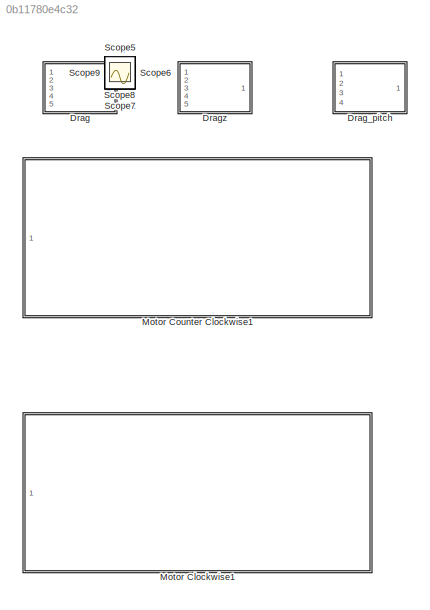
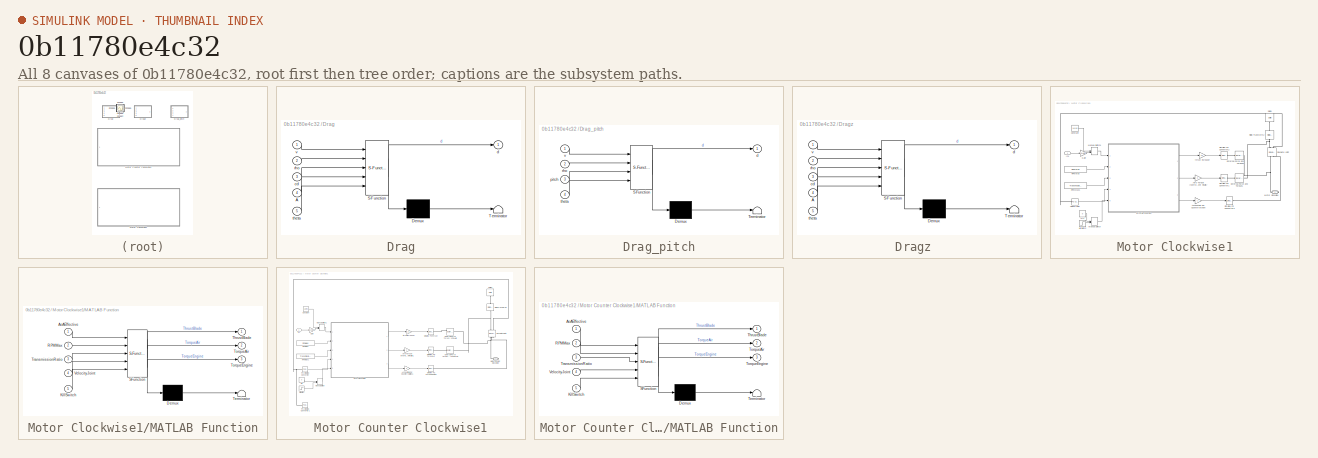
[diagram: thumbnail index - all 8 canvases of the model, root first then tree order]
MODEL slx_0b11780e4c32
KIND library
CONFIG AbsTol = auto
CONFIG FixedStep = auto
CONFIG MaxStep = auto
CONFIG MinStep = auto
CONFIG RelTol = 1e-3
CONFIG SampleTimeConstraint = Unconstrained
CONFIG Solver = VariableStepAuto
CONFIG SolverMode = Auto
CONFIG SolverName = VariableStepAuto
CONFIG StartTime = 0.0
CONFIG StopTime = 10.0
BLOCK [SubSystem] Drag
  ErrorFcn = Stateflow.Translate.translate
  MinAlgLoopOccurrences = on
  PermitHierarchicalResolution = ExplicitOnly
  Ports = [5, 1]
  RTWSystemCode = Inline
  RequestExecContextInheritance = off
  SFBlockType = MATLAB Function
  SystemSampleTime = 1
  TreatAsAtomicUnit = on
  Variant = off
BLOCK [Demux] Drag/ Demux 
  Outputs = 1
  Ports = [1, 1]
BLOCK [S-Function] Drag/ SFunction 
  EnableBusSupport = off
  FunctionName = sf_sfun
  PortCounts = [5 2]
  Ports = [5, 2]
  SFunctionDeploymentMode = off
  Tag = Stateflow S-Function Library_Octocopter 17
BLOCK [Terminator] Drag/ Terminator 
BLOCK [Inport] Drag/A
  IconDisplay = Port number
  Port = 4
BLOCK [Inport] Drag/cd
  IconDisplay = Port number
  Port = 3
BLOCK [Outport] Drag/d
  IconDisplay = Port number
BLOCK [Inport] Drag/rho
  IconDisplay = Port number
  Port = 2
BLOCK [Inport] Drag/theta
  IconDisplay = Port number
  Port = 5
BLOCK [Inport] Drag/v
  IconDisplay = Port number
BLOCK [SubSystem] Drag_pitch
  ErrorFcn = Stateflow.Translate.translate
  MinAlgLoopOccurrences = on
  PermitHierarchicalResolution = ExplicitOnly
  Ports = [4, 1]
  RTWSystemCode = Inline
  RequestExecContextInheritance = off
  SFBlockType = MATLAB Function
  SystemSampleTime = 1
  TreatAsAtomicUnit = on
  Variant = off
BLOCK [Demux] Drag_pitch/ Demux 
  Outputs = 1
  Ports = [1, 1]
BLOCK [S-Function] Drag_pitch/ SFunction 
  EnableBusSupport = off
  FunctionName = sf_sfun
  PortCounts = [4 2]
  Ports = [4, 2]
  SFunctionDeploymentMode = off
  Tag = Stateflow S-Function Library_Octocopter 3
BLOCK [Terminator] Drag_pitch/ Terminator 
BLOCK [Outport] Drag_pitch/d
  IconDisplay = Port number
BLOCK [Inport] Drag_pitch/pitch
  IconDisplay = Port number
  Port = 3
BLOCK [Inport] Drag_pitch/rho
  IconDisplay = Port number
  Port = 2
BLOCK [Inport] Drag_pitch/theta
  IconDisplay = Port number
  Port = 4
BLOCK [Inport] Drag_pitch/v
  IconDisplay = Port number
BLOCK [SubSystem] Dragz 
  ErrorFcn = Stateflow.Translate.translate
  MinAlgLoopOccurrences = on
  PermitHierarchicalResolution = ExplicitOnly
  Ports = [5, 1]
  RTWSystemCode = Inline
  RequestExecContextInheritance = off
  SFBlockType = MATLAB Function
  SystemSampleTime = 1
  TreatAsAtomicUnit = on
  Variant = off
BLOCK [Demux] Dragz / Demux 
  Outputs = 1
  Ports = [1, 1]
BLOCK [S-Function] Dragz / SFunction 
  EnableBusSupport = off
  FunctionName = sf_sfun
  PortCounts = [5 2]
  Ports = [5, 2]
  SFunctionDeploymentMode = off
  Tag = Stateflow S-Function Library_Octocopter 4
BLOCK [Terminator] Dragz / Terminator 
BLOCK [Inport] Dragz /A
  IconDisplay = Port number
  Port = 4
BLOCK [Inport] Dragz /cd
  IconDisplay = Port number
  Port = 3
BLOCK [Outport] Dragz /d
  IconDisplay = Port number
BLOCK [Inport] Dragz /rho
  IconDisplay = Port number
  Port = 2
BLOCK [Inport] Dragz /theta
  IconDisplay = Port number
  Port = 5
BLOCK [Inport] Dragz /v
  IconDisplay = Port number
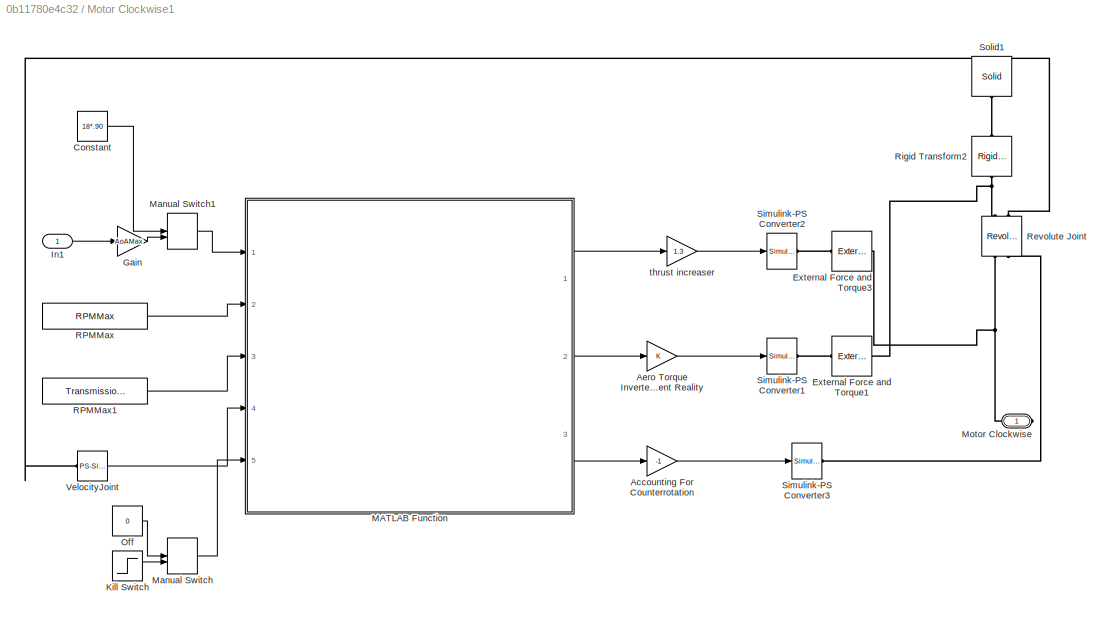
BLOCK [SubSystem] Motor Clockwise1
  Ports = [1, 0, 0, 0, 0, 0, 1]
  RequestExecContextInheritance = off
  Variant = off
BLOCK [Gain] Motor Clockwise1/Accounting For Counterrotation
  Gain = -1
  OutDataTypeStr = Inherit: Inherit via internal rule
  ParamDataTypeStr = Inherit: Inherit via internal rule
  SaturateOnIntegerOverflow = off
BLOCK [Gain] Motor Clockwise1/Aero Torque Inverter To Represent Reality
  OutDataTypeStr = Inherit: Inherit via internal rule
  ParamDataTypeStr = Inherit: Inherit via internal rule
  SaturateOnIntegerOverflow = off
BLOCK [Constant] Motor Clockwise1/Constant
  Value = 18*.90
BLOCK [Reference] Motor Clockwise1/External Force and Torque1  REF=sm_lib/Forces and
Torques/External Force
and Torque
  Ports = [0, 0, 0, 0, 0, 1, 1]
  SourceBlock = sm_lib/Forces and\nTorques/External Force\nand Torque
  SourceType = External Force\nand Torque
BLOCK [Reference] Motor Clockwise1/External Force and Torque3  REF=sm_lib/Forces and
Torques/External Force
and Torque
  Ports = [0, 0, 0, 0, 0, 1, 1]
  SourceBlock = sm_lib/Forces and\nTorques/External Force\nand Torque
  SourceType = External Force\nand Torque
BLOCK [Gain] Motor Clockwise1/Gain
  Gain = AoAMax
  OutDataTypeStr = Inherit: Inherit via internal rule
  ParamDataTypeStr = Inherit: Inherit via internal rule
  SaturateOnIntegerOverflow = off
BLOCK [Inport] Motor Clockwise1/In1
  IconDisplay = Port number
BLOCK [Step] Motor Clockwise1/Kill Switch
  Time = 10
BLOCK [SubSystem] Motor Clockwise1/MATLAB Function
  ErrorFcn = Stateflow.Translate.translate
  PermitHierarchicalResolution = ExplicitOnly
  Ports = [5, 3]
  RequestExecContextInheritance = off
  SFBlockType = MATLAB Function
  TreatAsAtomicUnit = on
  Variant = off
BLOCK [Demux] Motor Clockwise1/MATLAB Function/ Demux 
  Outputs = 1
  Ports = [1, 1]
BLOCK [S-Function] Motor Clockwise1/MATLAB Function/ SFunction 
  EnableBusSupport = off
  FunctionName = sf_sfun
  PortCounts = [5 4]
  Ports = [5, 4]
  SFunctionDeploymentMode = off
  Tag = Stateflow S-Function Library_Octocopter 2
BLOCK [Terminator] Motor Clockwise1/MATLAB Function/ Terminator 
BLOCK [Inport] Motor Clockwise1/MATLAB Function/AoAEffective
  IconDisplay = Port number
BLOCK [Inport] Motor Clockwise1/MATLAB Function/KillSwitch
  IconDisplay = Port number
  Port = 5
BLOCK [Inport] Motor Clockwise1/MATLAB Function/RPMMax
  IconDisplay = Port number
  Port = 2
BLOCK [Outport] Motor Clockwise1/MATLAB Function/ThrustBlade
  IconDisplay = Port number
BLOCK [Outport] Motor Clockwise1/MATLAB Function/TorqueAir
  IconDisplay = Port number
  Port = 2
BLOCK [Outport] Motor Clockwise1/MATLAB Function/TorqueEngine
  IconDisplay = Port number
  Port = 3
BLOCK [Inport] Motor Clockwise1/MATLAB Function/TransmissionRatio
  IconDisplay = Port number
  Port = 3
BLOCK [Inport] Motor Clockwise1/MATLAB Function/VelocityJoint
  IconDisplay = Port number
  Port = 4
BLOCK [ManualSwitch] Motor Clockwise1/Manual Switch
BLOCK [ManualSwitch] Motor Clockwise1/Manual Switch1
  CurrentSetting = 0
BLOCK [PMIOPort] Motor Clockwise1/Motor Clockwise
  Port = 1
  Side = Right
BLOCK [Constant] Motor Clockwise1/Off
  Value = 0
BLOCK [Constant] Motor Clockwise1/RPMMax
  Value = RPMMax
BLOCK [Constant] Motor Clockwise1/RPMMax1
  Value = TransmissionRatio
BLOCK [Reference] Motor Clockwise1/Revolute Joint  REF=sm_lib/Joints/Revolute Joint
  Ports = [0, 0, 0, 0, 0, 2, 2]
  SourceBlock = sm_lib/Joints/Revolute Joint
  SourceType = Revolute Joint
BLOCK [Reference] Motor Clockwise1/Rigid Transform2  REF=sm_lib/Frames and
Transforms/Rigid
Transform
  Ports = [0, 0, 0, 0, 0, 1, 1]
  SourceBlock = sm_lib/Frames and\nTransforms/Rigid\nTransform
  SourceType = Rigid\nTransform
BLOCK [Reference] Motor Clockwise1/Simulink-PS Converter1  REF=nesl_utility/Simulink-PS
Converter
  Ports = [1, 0, 0, 0, 0, 0, 1]
  SourceBlock = nesl_utility/Simulink-PS\nConverter
  SourceType = Simulink-PS\nConverter
BLOCK [Reference] Motor Clockwise1/Simulink-PS Converter2  REF=nesl_utility/Simulink-PS
Converter
  Ports = [1, 0, 0, 0, 0, 0, 1]
  SourceBlock = nesl_utility/Simulink-PS\nConverter
  SourceType = Simulink-PS\nConverter
BLOCK [Reference] Motor Clockwise1/Simulink-PS Converter3  REF=nesl_utility/Simulink-PS
Converter
  Ports = [1, 0, 0, 0, 0, 0, 1]
  SourceBlock = nesl_utility/Simulink-PS\nConverter
  SourceType = Simulink-PS\nConverter
BLOCK [Reference] Motor Clockwise1/Solid1  REF=sm_lib/Body Elements/Solid
  Ports = [0, 0, 0, 0, 0, 0, 1]
  SourceBlock = sm_lib/Body Elements/Solid
  SourceType = Solid
BLOCK [Reference] Motor Clockwise1/VelocityJoint  REF=nesl_utility/PS-Simulink
Converter
  Ports = [0, 1, 0, 0, 0, 1]
  SourceBlock = nesl_utility/PS-Simulink\nConverter
  SourceType = PS-Simulink\nConverter
BLOCK [Gain] Motor Clockwise1/thrust increaser
  Gain = 1.3
  OutDataTypeStr = Inherit: Inherit via internal rule
  ParamDataTypeStr = Inherit: Inherit via internal rule
  SaturateOnIntegerOverflow = off
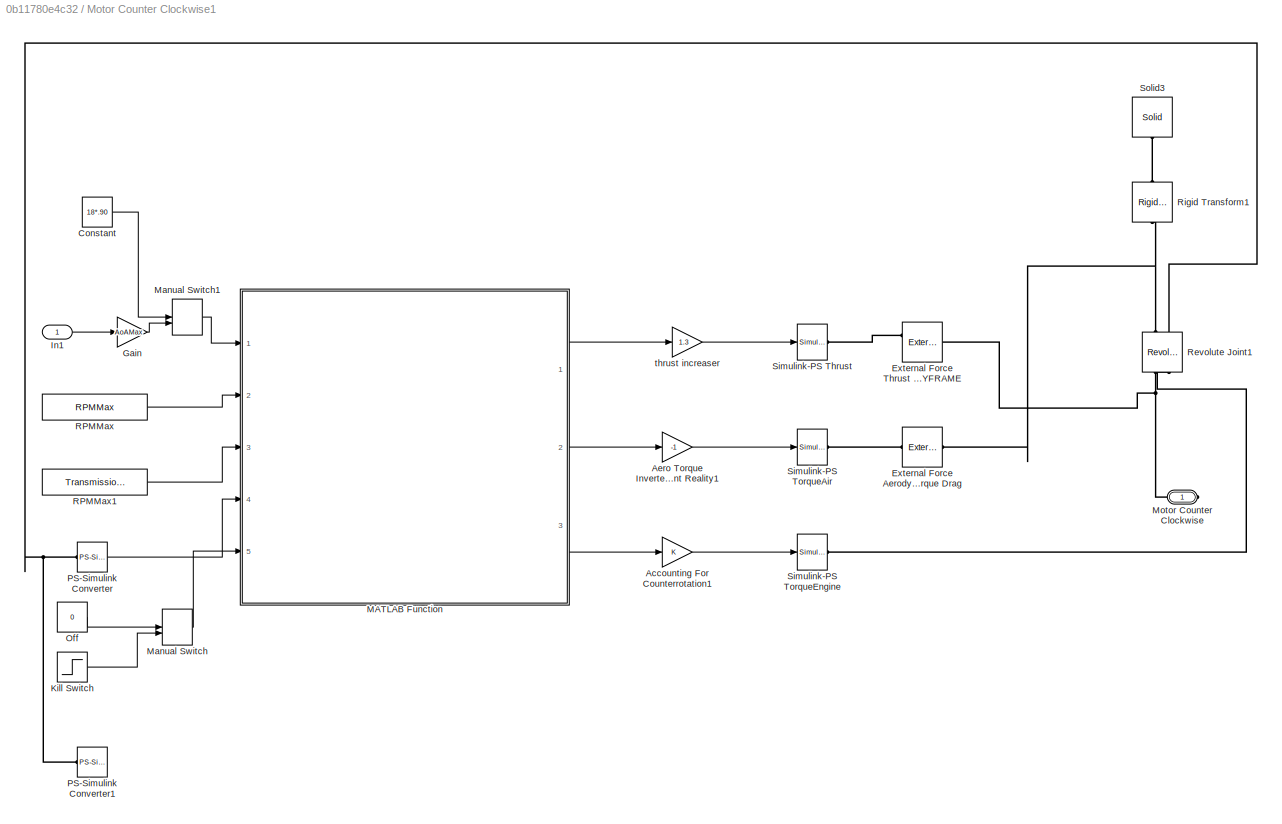
BLOCK [SubSystem] Motor Counter Clockwise1
  Ports = [1, 0, 0, 0, 0, 0, 1]
  RequestExecContextInheritance = off
  Variant = off
BLOCK [Gain] Motor Counter Clockwise1/Accounting For Counterrotation1
  OutDataTypeStr = Inherit: Inherit via internal rule
  ParamDataTypeStr = Inherit: Inherit via internal rule
  SaturateOnIntegerOverflow = off
BLOCK [Gain] Motor Counter Clockwise1/Aero Torque Inverter To Represent Reality1
  Gain = -1
  OutDataTypeStr = Inherit: Inherit via internal rule
  ParamDataTypeStr = Inherit: Inherit via internal rule
  SaturateOnIntegerOverflow = off
BLOCK [Constant] Motor Counter Clockwise1/Constant
  Value = 18*.90
BLOCK [Reference] Motor Counter Clockwise1/External Force Aerodyanic Torque Drag  REF=sm_lib/Forces and
Torques/External Force
and Torque
  Ports = [0, 0, 0, 0, 0, 1, 1]
  SourceBlock = sm_lib/Forces and\nTorques/External Force\nand Torque
  SourceType = External Force\nand Torque
BLOCK [Reference] Motor Counter Clockwise1/External Force Thrust DOWNWARD Z BODYFRAME  REF=sm_lib/Forces and
Torques/External Force
and Torque
  Ports = [0, 0, 0, 0, 0, 2, 1]
  SourceBlock = sm_lib/Forces and\nTorques/External Force\nand Torque
  SourceType = External Force\nand Torque
BLOCK [Gain] Motor Counter Clockwise1/Gain
  Gain = AoAMax
  OutDataTypeStr = Inherit: Inherit via internal rule
  ParamDataTypeStr = Inherit: Inherit via internal rule
  SaturateOnIntegerOverflow = off
BLOCK [Inport] Motor Counter Clockwise1/In1
  IconDisplay = Port number
BLOCK [Step] Motor Counter Clockwise1/Kill Switch
  Time = 10
BLOCK [SubSystem] Motor Counter Clockwise1/MATLAB Function
  ErrorFcn = Stateflow.Translate.translate
  PermitHierarchicalResolution = ExplicitOnly
  Ports = [5, 3]
  RequestExecContextInheritance = off
  SFBlockType = MATLAB Function
  TreatAsAtomicUnit = on
  Variant = off
BLOCK [Demux] Motor Counter Clockwise1/MATLAB Function/ Demux 
  Outputs = 1
  Ports = [1, 1]
BLOCK [S-Function] Motor Counter Clockwise1/MATLAB Function/ SFunction 
  EnableBusSupport = off
  FunctionName = sf_sfun
  PortCounts = [5 4]
  Ports = [5, 4]
  SFunctionDeploymentMode = off
  Tag = Stateflow S-Function Library_Octocopter 1
BLOCK [Terminator] Motor Counter Clockwise1/MATLAB Function/ Terminator 
BLOCK [Inport] Motor Counter Clockwise1/MATLAB Function/AoAEffective
  IconDisplay = Port number
BLOCK [Inport] Motor Counter Clockwise1/MATLAB Function/KillSwitch
  IconDisplay = Port number
  Port = 5
BLOCK [Inport] Motor Counter Clockwise1/MATLAB Function/RPMMax
  IconDisplay = Port number
  Port = 2
BLOCK [Outport] Motor Counter Clockwise1/MATLAB Function/ThrustBlade
  IconDisplay = Port number
BLOCK [Outport] Motor Counter Clockwise1/MATLAB Function/TorqueAir
  IconDisplay = Port number
  Port = 2
BLOCK [Outport] Motor Counter Clockwise1/MATLAB Function/TorqueEngine
  IconDisplay = Port number
  Port = 3
BLOCK [Inport] Motor Counter Clockwise1/MATLAB Function/TransmissionRatio
  IconDisplay = Port number
  Port = 3
BLOCK [Inport] Motor Counter Clockwise1/MATLAB Function/VelocityJoint
  IconDisplay = Port number
  Port = 4
BLOCK [ManualSwitch] Motor Counter Clockwise1/Manual Switch
BLOCK [ManualSwitch] Motor Counter Clockwise1/Manual Switch1
  CurrentSetting = 0
BLOCK [PMIOPort] Motor Counter Clockwise1/Motor Counter Clockwise
  Port = 1
  Side = Right
BLOCK [Constant] Motor Counter Clockwise1/Off
  Value = 0
BLOCK [Reference] Motor Counter Clockwise1/PS-Simulink Converter  REF=nesl_utility/PS-Simulink
Converter
  Ports = [0, 1, 0, 0, 0, 1]
  SourceBlock = nesl_utility/PS-Simulink\nConverter
  SourceType = PS-Simulink\nConverter
BLOCK [Reference] Motor Counter Clockwise1/PS-Simulink Converter1  REF=nesl_utility/PS-Simulink
Converter
  Commented = on
  Ports = [0, 1, 0, 0, 0, 1]
  SourceBlock = nesl_utility/PS-Simulink\nConverter
  SourceType = PS-Simulink\nConverter
BLOCK [Constant] Motor Counter Clockwise1/RPMMax
  Value = RPMMax
BLOCK [Constant] Motor Counter Clockwise1/RPMMax1
  Value = TransmissionRatio
BLOCK [Reference] Motor Counter Clockwise1/Revolute Joint1  REF=sm_lib/Joints/Revolute Joint
  Ports = [0, 0, 0, 0, 0, 2, 2]
  SourceBlock = sm_lib/Joints/Revolute Joint
  SourceType = Revolute Joint
BLOCK [Reference] Motor Counter Clockwise1/Rigid Transform1  REF=sm_lib/Frames and
Transforms/Rigid
Transform
  Ports = [0, 0, 0, 0, 0, 1, 1]
  SourceBlock = sm_lib/Frames and\nTransforms/Rigid\nTransform
  SourceType = Rigid\nTransform
BLOCK [Reference] Motor Counter Clockwise1/Simulink-PS Thrust  REF=nesl_utility/Simulink-PS
Converter
  Ports = [1, 0, 0, 0, 0, 0, 1]
  SourceBlock = nesl_utility/Simulink-PS\nConverter
  SourceType = Simulink-PS\nConverter
BLOCK [Reference] Motor Counter Clockwise1/Simulink-PS TorqueAir  REF=nesl_utility/Simulink-PS
Converter
  Ports = [1, 0, 0, 0, 0, 0, 1]
  SourceBlock = nesl_utility/Simulink-PS\nConverter
  SourceType = Simulink-PS\nConverter
BLOCK [Reference] Motor Counter Clockwise1/Simulink-PS TorqueEngine  REF=nesl_utility/Simulink-PS
Converter
  Ports = [1, 0, 0, 0, 0, 0, 1]
  SourceBlock = nesl_utility/Simulink-PS\nConverter
  SourceType = Simulink-PS\nConverter
BLOCK [Reference] Motor Counter Clockwise1/Solid3  REF=sm_lib/Body Elements/Solid
  Ports = [0, 0, 0, 0, 0, 0, 1]
  SourceBlock = sm_lib/Body Elements/Solid
  SourceType = Solid
BLOCK [Gain] Motor Counter Clockwise1/thrust increaser
  Gain = 1.3
  OutDataTypeStr = Inherit: Inherit via internal rule
  ParamDataTypeStr = Inherit: Inherit via internal rule
  SaturateOnIntegerOverflow = off
BLOCK [Scope] Scope
  IOType = viewer
  Ports = []
  ScopeSpecificationString = Simulink.scopes.TimeScopeBlockCfg('CurrentConfiguration', extmgr.ConfigurationSet(extmgr.Configuration('Core','General UI',true),extmgr.Configuration('Core','Source UI',true),extmgr.Configuration('Sources','WiredSimulink',true),extmgr.Configuration('Visuals','Time Domain',true,'SerializedDisplays',{struct('MinYLimReal','-10','MaxYLimReal','10','YLabelReal','','MinYLimMag','0','MaxYLimMag','10','Le...<+1276ch>
BLOCK [Scope] Scope1
  IOType = viewer
  Ports = []
  ScopeSpecificationString = Simulink.scopes.TimeScopeBlockCfg('CurrentConfiguration', extmgr.ConfigurationSet(extmgr.Configuration('Core','General UI',true),extmgr.Configuration('Core','Source UI',true),extmgr.Configuration('Sources','WiredSimulink',true,'DataLoggingVariableName','ScopeData1'),extmgr.Configuration('Visuals','Time Domain',true),extmgr.Configuration('Tools','Plot Navigation',true),extmgr.Configuration('Tools',...<+87ch>
BLOCK [Scope] Scope2
  IOType = viewer
  Ports = []
  ScopeSpecificationString = Simulink.scopes.TimeScopeBlockCfg('CurrentConfiguration', extmgr.ConfigurationSet(extmgr.Configuration('Core','General UI',true),extmgr.Configuration('Core','Source UI',true),extmgr.Configuration('Sources','WiredSimulink',true,'DataLoggingVariableName','ScopeData2'),extmgr.Configuration('Visuals','Time Domain',true,'SerializedDisplays',{struct('MinYLimReal','-10','MaxYLimReal','10','YLabelReal',''...<+1340ch>
BLOCK [Scope] Scope3
  IOType = viewer
  Ports = []
  ScopeSpecificationString = Simulink.scopes.TimeScopeBlockCfg('CurrentConfiguration', extmgr.ConfigurationSet(extmgr.Configuration('Core','General UI',true),extmgr.Configuration('Core','Source UI',true),extmgr.Configuration('Sources','WiredSimulink',true,'DataLoggingVariableName','ScopeData3'),extmgr.Configuration('Visuals','Time Domain',true,'SerializedDisplays',{struct('MinYLimReal','-10','MaxYLimReal','10','YLabelReal',''...<+1340ch>
BLOCK [Scope] Scope4
  IOType = viewer
  Ports = []
  ScopeSpecificationString = Simulink.scopes.TimeScopeBlockCfg('CurrentConfiguration', extmgr.ConfigurationSet(extmgr.Configuration('Core','General UI',true),extmgr.Configuration('Core','Source UI',true),extmgr.Configuration('Sources','WiredSimulink',true,'DataLoggingVariableName','ScopeData4'),extmgr.Configuration('Visuals','Time Domain',true,'SerializedDisplays',{struct('MinYLimReal','-10','MaxYLimReal','10','YLabelReal',''...<+1315ch>
BLOCK [Scope] Scope5
  IOType = viewer
  Ports = []
  ScopeSpecificationString = Simulink.scopes.TimeScopeBlockCfg('CurrentConfiguration', extmgr.ConfigurationSet(extmgr.Configuration('Core','General UI',true),extmgr.Configuration('Core','Source UI',true),extmgr.Configuration('Sources','WiredSimulink',true,'DataLoggingVariableName','ScopeData5'),extmgr.Configuration('Visuals','Time Domain',true,'SerializedDisplays',{struct('MinYLimReal','-10','MaxYLimReal','10','YLabelReal',''...<+1315ch>
BLOCK [Scope] Scope6
  IOType = viewer
  Ports = []
  ScopeSpecificationString = Simulink.scopes.TimeScopeBlockCfg('CurrentConfiguration', extmgr.ConfigurationSet(extmgr.Configuration('Core','General UI',true),extmgr.Configuration('Core','Source UI',true),extmgr.Configuration('Sources','WiredSimulink',true,'DataLoggingVariableName','ScopeData1'),extmgr.Configuration('Visuals','Time Domain',true,'SerializedDisplays',{struct('MinYLimReal','-10','MaxYLimReal','10','YLabelReal',''...<+1370ch>
BLOCK [Scope] Scope7
  IOType = viewer
  Ports = []
  ScopeSpecificationString = Simulink.scopes.TimeScopeBlockCfg('CurrentConfiguration', extmgr.ConfigurationSet(extmgr.Configuration('Core','General UI',true),extmgr.Configuration('Core','Source UI',true),extmgr.Configuration('Sources','WiredSimulink',true,'DataLoggingVariableName','ScopeData2'),extmgr.Configuration('Visuals','Time Domain',true,'SerializedDisplays',{struct('MinYLimReal','-10','MaxYLimReal','10','YLabelReal',''...<+1369ch>
BLOCK [Scope] Scope8
  IOType = viewer
  Ports = []
  ScopeSpecificationString = Simulink.scopes.TimeScopeBlockCfg('CurrentConfiguration', extmgr.ConfigurationSet(extmgr.Configuration('Core','General UI',true),extmgr.Configuration('Core','Source UI',true),extmgr.Configuration('Sources','WiredSimulink',true,'DataLoggingVariableName','ScopeData3'),extmgr.Configuration('Visuals','Time Domain',true,'SerializedDisplays',{struct('MinYLimReal','-10','MaxYLimReal','10','YLabelReal',''...<+1370ch>
BLOCK [Scope] Scope9
  IOType = viewer
  Ports = []
  ScopeSpecificationString = Simulink.scopes.TimeScopeBlockCfg('CurrentConfiguration', extmgr.ConfigurationSet(extmgr.Configuration('Core','General UI',true),extmgr.Configuration('Core','Source UI',true),extmgr.Configuration('Sources','WiredSimulink',true,'DataLoggingVariableName','ScopeData4'),extmgr.Configuration('Visuals','Time Domain',true,'SerializedDisplays',{struct('MinYLimReal','-10','MaxYLimReal','10','YLabelReal',''...<+1369ch>
LINE Motor Clockwise1/Accounting For Counterrotation:1 -> Motor Clockwise1/Simulink-PS Converter3:1
LINE Motor Clockwise1/Aero Torque Inverter To Represent Reality:1 -> Motor Clockwise1/Simulink-PS Converter1:1
LINE Motor Clockwise1/Constant:1 -> Motor Clockwise1/Manual Switch1:1
LINE Motor Clockwise1/Gain:1 -> Motor Clockwise1/Manual Switch1:2
LINE Motor Clockwise1/In1:1 -> Motor Clockwise1/Gain:1
LINE Motor Clockwise1/Kill Switch:1 -> Motor Clockwise1/Manual Switch:2
LINE Motor Clockwise1/MATLAB Function:1 -> Motor Clockwise1/thrust increaser:1
LINE Motor Clockwise1/MATLAB Function:2 -> Motor Clockwise1/Aero Torque Inverter To Represent Reality:1
LINE Motor Clockwise1/MATLAB Function:3 -> Motor Clockwise1/Accounting For Counterrotation:1
LINE Motor Clockwise1/Manual Switch1:1 -> Motor Clockwise1/MATLAB Function:1
LINE Motor Clockwise1/Manual Switch:1 -> Motor Clockwise1/MATLAB Function:5
LINE Motor Clockwise1/Off:1 -> Motor Clockwise1/Manual Switch:1
LINE Motor Clockwise1/RPMMax1:1 -> Motor Clockwise1/MATLAB Function:3
LINE Motor Clockwise1/RPMMax:1 -> Motor Clockwise1/MATLAB Function:2
LINE Motor Clockwise1/VelocityJoint:1 -> Motor Clockwise1/MATLAB Function:4
LINE Motor Clockwise1/thrust increaser:1 -> Motor Clockwise1/Simulink-PS Converter2:1
LINE Motor Counter Clockwise1/Accounting For Counterrotation1:1 -> Motor Counter Clockwise1/Simulink-PS TorqueEngine:1
LINE Motor Counter Clockwise1/Aero Torque Inverter To Represent Reality1:1 -> Motor Counter Clockwise1/Simulink-PS TorqueAir:1
LINE Motor Counter Clockwise1/Constant:1 -> Motor Counter Clockwise1/Manual Switch1:1
LINE Motor Counter Clockwise1/Gain:1 -> Motor Counter Clockwise1/Manual Switch1:2
LINE Motor Counter Clockwise1/In1:1 -> Motor Counter Clockwise1/Gain:1
LINE Motor Counter Clockwise1/Kill Switch:1 -> Motor Counter Clockwise1/Manual Switch:2
LINE Motor Counter Clockwise1/MATLAB Function:1 -> Motor Counter Clockwise1/thrust increaser:1
LINE Motor Counter Clockwise1/MATLAB Function:2 -> Motor Counter Clockwise1/Aero Torque Inverter To Represent Reality1:1
LINE Motor Counter Clockwise1/MATLAB Function:3 -> Motor Counter Clockwise1/Accounting For Counterrotation1:1
LINE Motor Counter Clockwise1/Manual Switch1:1 -> Motor Counter Clockwise1/MATLAB Function:1
LINE Motor Counter Clockwise1/Manual Switch:1 -> Motor Counter Clockwise1/MATLAB Function:5
LINE Motor Counter Clockwise1/Off:1 -> Motor Counter Clockwise1/Manual Switch:1
LINE Motor Counter Clockwise1/PS-Simulink Converter:1 -> Motor Counter Clockwise1/MATLAB Function:4
LINE Motor Counter Clockwise1/RPMMax1:1 -> Motor Counter Clockwise1/MATLAB Function:3
LINE Motor Counter Clockwise1/RPMMax:1 -> Motor Counter Clockwise1/MATLAB Function:2
LINE Motor Counter Clockwise1/thrust increaser:1 -> Motor Counter Clockwise1/Simulink-PS Thrust:1
PLINE Motor Clockwise1/External Force and Torque1:LConn1 -- Motor Clockwise1/Simulink-PS Converter1:RConn1
PNET net1: Motor Clockwise1/External Force and Torque1:RConn1 -- Motor Clockwise1/Revolute Joint:RConn1 -- Motor Clockwise1/Rigid Transform2:RConn1
PLINE Motor Clockwise1/External Force and Torque3:LConn1 -- Motor Clockwise1/Simulink-PS Converter2:RConn1
PNET net2: Motor Clockwise1/External Force and Torque3:RConn1 -- Motor Clockwise1/Motor Clockwise:RConn1 -- Motor Clockwise1/Revolute Joint:LConn1
PLINE Motor Clockwise1/Revolute Joint:LConn2 -- Motor Clockwise1/Simulink-PS Converter3:RConn1
PLINE Motor Clockwise1/Revolute Joint:RConn2 -- Motor Clockwise1/VelocityJoint:LConn1
PLINE Motor Clockwise1/Rigid Transform2:LConn1 -- Motor Clockwise1/Solid1:RConn1
PLINE Motor Counter Clockwise1/External Force Aerodyanic Torque Drag:LConn1 -- Motor Counter Clockwise1/Simulink-PS TorqueAir:RConn1
PNET net3: Motor Counter Clockwise1/External Force Aerodyanic Torque Drag:RConn1 -- Motor Counter Clockwise1/Revolute Joint1:RConn1 -- Motor Counter Clockwise1/Rigid Transform1:LConn1
PLINE Motor Counter Clockwise1/External Force Thrust DOWNWARD Z BODYFRAME:LConn1 -- Motor Counter Clockwise1/Simulink-PS Thrust:RConn1
PNET net4: Motor Counter Clockwise1/External Force Thrust DOWNWARD Z BODYFRAME:RConn1 -- Motor Counter Clockwise1/Motor Counter Clockwise:RConn1 -- Motor Counter Clockwise1/Revolute Joint1:LConn1
PNET net5: Motor Counter Clockwise1/PS-Simulink Converter1:LConn1 -- Motor Counter Clockwise1/PS-Simulink Converter:LConn1 -- Motor Counter Clockwise1/Revolute Joint1:RConn2
PLINE Motor Counter Clockwise1/Revolute Joint1:LConn2 -- Motor Counter Clockwise1/Simulink-PS TorqueEngine:RConn1
PLINE Motor Counter Clockwise1/Rigid Transform1:RConn1 -- Motor Counter Clockwise1/Solid3:RConn1
note: PNET lines group multi-terminal physical nets as a canonical sorted terminal list (undirected conserving connections); 2-terminal nets keep the pairwise PLINE form
CHART Motor Counter Clockwise1/MATLAB Function states=1 transitions=1
  STATE_LABEL 'eML_blk_kernel()'
  STATE_LABEL 'SCRIPT:\nfunction [ThrustBlade,TorqueAir, TorqueEngine] = AeroThrustTorque2(AoAEffective, RPMMax, TransmissionRatio, VelocityJoint, KillSwitch)\n\n%%%Compute the rotational velocity after transmission in rad/s%%%\nRPMMaxtoRadafterTransmission=(RPMMax*(pi/30))/TransmissionRatio;\n\n%%%Round the pitch setting to one decimal (x.x)%%%\nAoAEffectiveRound=round(AoAEffective*10);\n\n%%%The Pitch Blade setting is ...<+3608ch>'
CHART Motor Clockwise1/MATLAB Function states=1 transitions=1
  STATE_LABEL 'eML_blk_kernel()'
  STATE_LABEL 'SCRIPT:\nfunction [ThrustBlade,TorqueAir, TorqueEngine] = AeroThrustTorque2(AoAEffective, RPMMax, TransmissionRatio, VelocityJoint, KillSwitch)\n\n%%%Compute the rotational velocity after transmission in rad/s%%%\nRPMMaxtoRadafterTransmission=(RPMMax*(pi/30))/TransmissionRatio;\n\n%%%Round the pitch setting to one decimal (x.x)%%%\nAoAEffectiveRound=round(AoAEffective*10);\n\n%%%The Pitch Blade setting is ...<+3608ch>'
CHART Drag_pitch states=1 transitions=1
  STATE_LABEL 'eML_blk_kernel()'
  STATE_LABEL 'SCRIPT:\nfunction d = fcn(v, rho, pitch, theta)\n%#codegen\n\nd = -double(pitch)*double(rho)*double(v)*(0.7-double(theta)*0.075);'
CHART Dragz
 states=1 transitions=1
  STATE_LABEL 'eML_blk_kernel()'
  STATE_LABEL 'SCRIPT:\nfunction d = fcn(v, rho, cd, A, theta)\n%#codegen\n\nd = -0.5* rho* abs(v)*v*cd*A*(1+cos(theta));'
CHART Drag states=1 transitions=1
  STATE_LABEL 'eML_blk_kernel()'
  STATE_LABEL 'SCRIPT:\nfunction d = fcn(v, rho, cd, A, theta)\n%#codegen\n\nd = -0.5* rho* abs(v)*v*cd*A*(1+sin(theta));'
